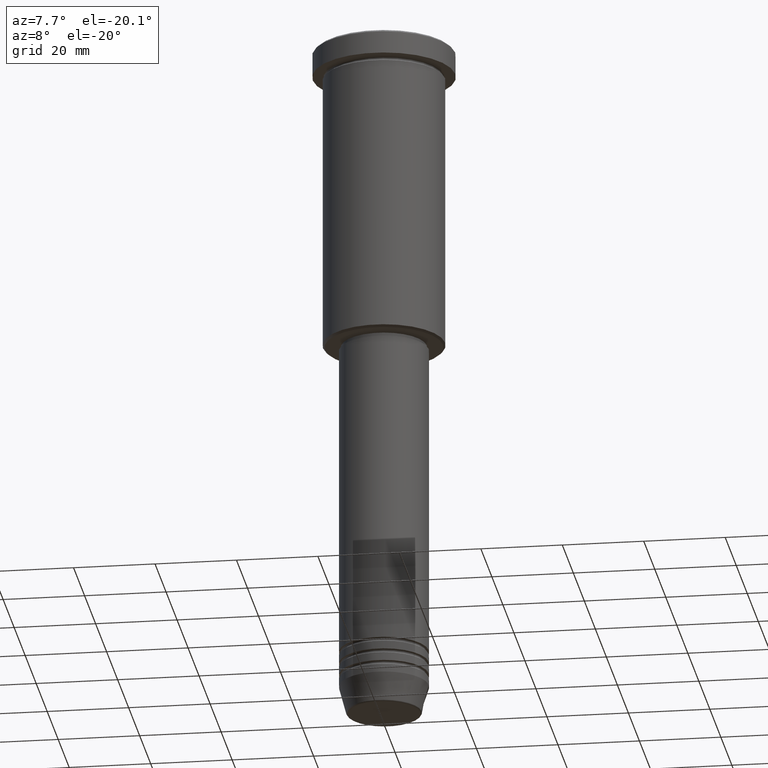
[diagram: clean part render]
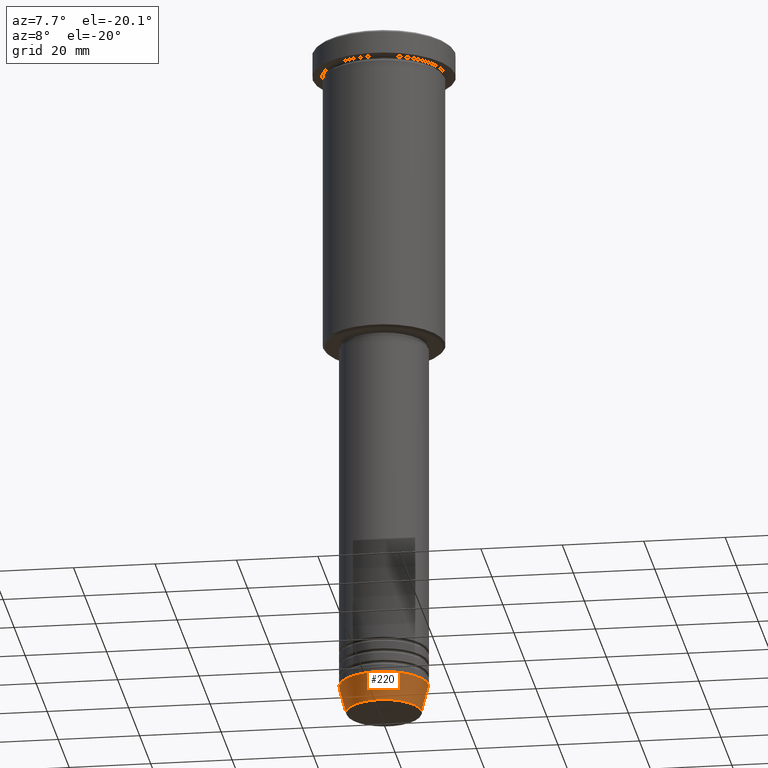
[diagram: same view with one face highlighted and labeled with its STEP entity id]
A machine part, auxiliary view. The second image highlights one B-rep face of the part: STEP entity #220.
In plain terms, the highlighted conical surface has half-angle 15 deg.
Its self-contained STEP definition (entity closure, byte-faithful):
#22 = AXIS2_PLACEMENT_3D ( 'NONE', #168, #539, #444 ) ;
#29 = CARTESIAN_POINT ( 'NONE',  ( 0.000000000000000000, 0.000000000000000000, -170.6294095225512422 ) ) ;
#109 = ORIENTED_EDGE ( 'NONE', *, *, #1142, .T. ) ;
#132 = CARTESIAN_POINT ( 'NONE',  ( 11.00000000000000000, 0.000000000000000000, -164.0000000000000000 ) ) ;
#142 = ORIENTED_EDGE ( 'NONE', *, *, #295, .T. ) ;
#156 = DIRECTION ( 'NONE',  ( -0.000000000000000000, -0.000000000000000000, 1.000000000000000000 ) ) ;
#168 = CARTESIAN_POINT ( 'NONE',  ( 0.000000000000000000, 0.000000000000000000, -164.0000000000000000 ) ) ;
#201 = ORIENTED_EDGE ( 'NONE', *, *, #924, .F. ) ;
#203 = CARTESIAN_POINT ( 'NONE',  ( 9.223655072137194821, 0.000000000000000000, -170.6294095225512422 ) ) ;
#220 = ADVANCED_FACE ( 'NONE', ( #325 ), #333, .T. ) ;
#228 = CARTESIAN_POINT ( 'NONE',  ( 11.00000000000000000, 0.000000000000000000, -164.0000000000000000 ) ) ;
#257 = CIRCLE ( 'NONE', #22, 11.00000000000000000 ) ;
#294 = DIRECTION ( 'NONE',  ( -0.000000000000000000, -0.000000000000000000, 1.000000000000000000 ) ) ;
#295 = EDGE_CURVE ( 'NONE', #1179, #855, #678, .T. ) ;
#318 = CARTESIAN_POINT ( 'NONE',  ( 0.000000000000000000, 0.000000000000000000, -164.0000000000000000 ) ) ;
#325 = FACE_OUTER_BOUND ( 'NONE', #868, .T. ) ;
#333 = CONICAL_SURFACE ( 'NONE', #373, 11.00000000000000000, 0.2617993877991500740 ) ;
#373 = AXIS2_PLACEMENT_3D ( 'NONE', #318, #156, #973 ) ;
#415 = VERTEX_POINT ( 'NONE', #875 ) ;
#444 = DIRECTION ( 'NONE',  ( 1.000000000000000000, 0.000000000000000000, 0.000000000000000000 ) ) ;
#462 = ORIENTED_EDGE ( 'NONE', *, *, #487, .F. ) ;
#487 = EDGE_CURVE ( 'NONE', #415, #848, #527, .T. ) ;
#497 = DIRECTION ( 'NONE',  ( 0.2588190451025213501, 0.000000000000000000, 0.9659258262890680902 ) ) ;
#507 = CIRCLE ( 'NONE', #810, 9.223655072137194821 ) ;
#511 = CARTESIAN_POINT ( 'NONE',  ( -11.00000000000000000, 1.347111479062088405E-15, -164.0000000000000000 ) ) ;
#527 = LINE ( 'NONE', #1176, #604 ) ;
#539 = DIRECTION ( 'NONE',  ( -0.000000000000000000, -0.000000000000000000, 1.000000000000000000 ) ) ;
#604 = VECTOR ( 'NONE', #1181, 1000.000000000000000 ) ;
#678 = LINE ( 'NONE', #132, #918 ) ;
#810 = AXIS2_PLACEMENT_3D ( 'NONE', #29, #294, #1084 ) ;
#848 = VERTEX_POINT ( 'NONE', #511 ) ;
#855 = VERTEX_POINT ( 'NONE', #228 ) ;
#868 = EDGE_LOOP ( 'NONE', ( #462, #109, #142, #201 ) ) ;
#875 = CARTESIAN_POINT ( 'NONE',  ( -9.223655072137194821, 1.238341722557647596E-15, -170.6294095225512422 ) ) ;
#918 = VECTOR ( 'NONE', #497, 1000.000000000000000 ) ;
#924 = EDGE_CURVE ( 'NONE', #848, #855, #257, .T. ) ;
#973 = DIRECTION ( 'NONE',  ( 1.000000000000000000, 0.000000000000000000, 0.000000000000000000 ) ) ;
#1084 = DIRECTION ( 'NONE',  ( 1.000000000000000000, 0.000000000000000000, 0.000000000000000000 ) ) ;
#1142 = EDGE_CURVE ( 'NONE', #415, #1179, #507, .T. ) ;
#1176 = CARTESIAN_POINT ( 'NONE',  ( -11.00000000000000000, 1.347111479062088405E-15, -164.0000000000000000 ) ) ;
#1179 = VERTEX_POINT ( 'NONE', #203 ) ;
#1181 = DIRECTION ( 'NONE',  ( -0.2588190451025213501, 3.169619151431772337E-17, 0.9659258262890680902 ) ) ;